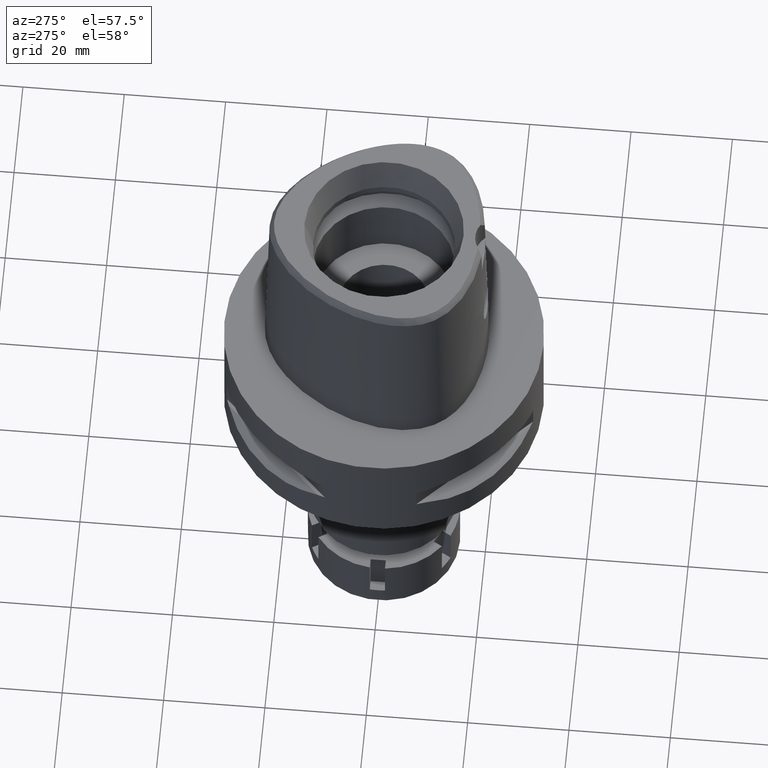
[diagram: clean part render]
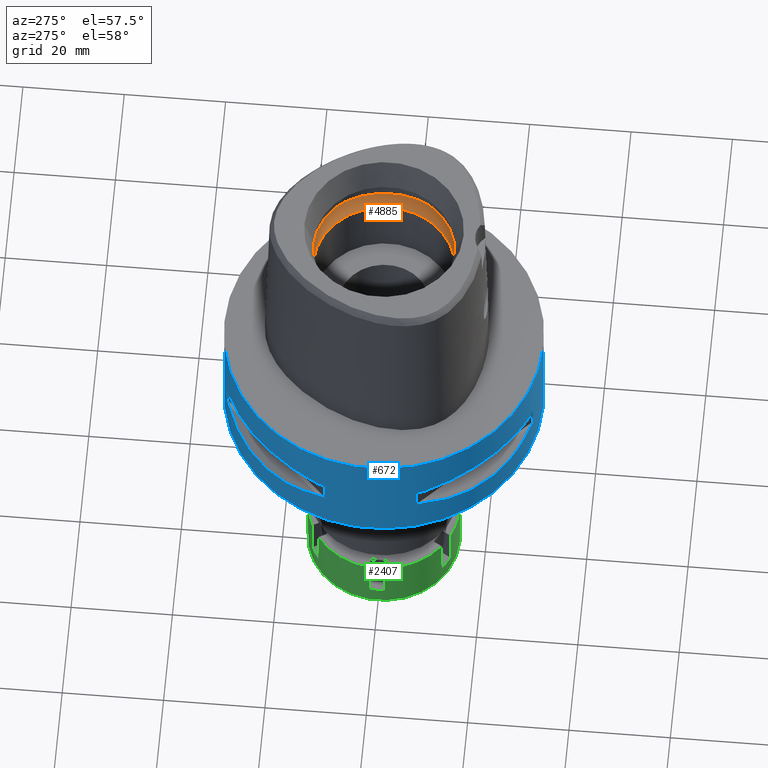
[diagram: same view with three faces highlighted in distinct colors, each labeled with its STEP entity id]
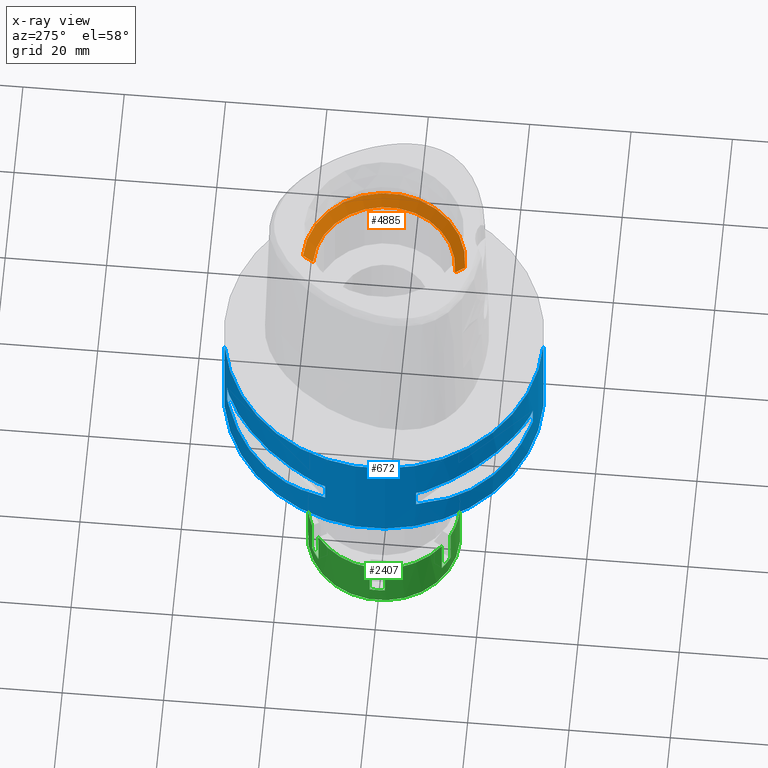
[diagram: x-ray of the same camera — body ghosted, the three highlighted faces saturated]
A machine part, auxiliary view with three faces highlighted in distinct colors.
The next image is the same camera in x-ray (body ghosted, the three faces saturated) — at least one of them is partly hidden behind the body in this view.
Their STEP definitions:

[orange] entity #4885 — the highlighted conical surface has half-angle 45 deg.
#178 = EDGE_CURVE ( 'NONE', #5283, #1305, #4591, .T. ) ;
#352 = CARTESIAN_POINT ( 'NONE',  ( 0.0000000000000000000, 16.00000000000000000, 26.20000000000000284 ) ) ;
#416 = ORIENTED_EDGE ( 'NONE', *, *, #178, .T. ) ;
#537 = ORIENTED_EDGE ( 'NONE', *, *, #3605, .F. ) ;
#600 = LINE ( 'NONE', #3558, #2010 ) ;
#818 = CARTESIAN_POINT ( 'NONE',  ( 0.0000000000000000000, 14.00000000000000000, 24.19999999999999929 ) ) ;
#908 = EDGE_CURVE ( 'NONE', #4446, #1081, #600, .T. ) ;
#1041 = DIRECTION ( 'NONE',  ( 0.0000000000000000000, 0.0000000000000000000, -1.000000000000000000 ) ) ;
#1081 = VERTEX_POINT ( 'NONE', #352 ) ;
#1305 = VERTEX_POINT ( 'NONE', #3612 ) ;
#1372 = CARTESIAN_POINT ( 'NONE',  ( 0.0000000000000000000, 0.0000000000000000000, 24.19999999999999929 ) ) ;
#1399 = EDGE_LOOP ( 'NONE', ( #537, #3293, #2853, #416 ) ) ;
#1430 = DIRECTION ( 'NONE',  ( 0.0000000000000000000, -1.000000000000000000, 0.0000000000000000000 ) ) ;
#1528 = DIRECTION ( 'NONE',  ( 0.0000000000000000000, 1.000000000000000000, 0.0000000000000000000 ) ) ;
#1856 = CARTESIAN_POINT ( 'NONE',  ( 0.0000000000000000000, 0.0000000000000000000, 26.20000000000000284 ) ) ;
#1988 = CIRCLE ( 'NONE', #3396, 16.00000000000000000 ) ;
#2010 = VECTOR ( 'NONE', #4064, 1000.000000000000114 ) ;
#2117 = DIRECTION ( 'NONE',  ( 0.0000000000000000000, 1.000000000000000000, 0.0000000000000000000 ) ) ;
#2241 = CARTESIAN_POINT ( 'NONE',  ( 0.0000000000000000000, -14.00000000000000000, 24.19999999999999929 ) ) ;
#2284 = DIRECTION ( 'NONE',  ( 0.0000000000000000000, 0.0000000000000000000, 1.000000000000000000 ) ) ;
#2460 = DIRECTION ( 'NONE',  ( 0.0000000000000000000, -0.7071067811865474617, 0.7071067811865474617 ) ) ;
#2853 = ORIENTED_EDGE ( 'NONE', *, *, #3994, .F. ) ;
#2929 = CARTESIAN_POINT ( 'NONE',  ( 0.0000000000000000000, -14.00000000000000000, 24.19999999999999929 ) ) ;
#3293 = ORIENTED_EDGE ( 'NONE', *, *, #908, .F. ) ;
#3367 = CARTESIAN_POINT ( 'NONE',  ( 0.0000000000000000000, 0.0000000000000000000, 25.19999999999999929 ) ) ;
#3396 = AXIS2_PLACEMENT_3D ( 'NONE', #1856, #1041, #1528 ) ;
#3558 = CARTESIAN_POINT ( 'NONE',  ( 0.0000000000000000000, 14.00000000000000000, 24.19999999999999929 ) ) ;
#3576 = CONICAL_SURFACE ( 'NONE', #3833, 15.00000000000000000, 0.7853981633972997312 ) ;
#3605 = EDGE_CURVE ( 'NONE', #1081, #1305, #1988, .T. ) ;
#3612 = CARTESIAN_POINT ( 'NONE',  ( 0.0000000000000000000, -16.00000000000000000, 26.20000000000000284 ) ) ;
#3833 = AXIS2_PLACEMENT_3D ( 'NONE', #3367, #4717, #2117 ) ;
#3858 = VECTOR ( 'NONE', #2460, 1000.000000000000114 ) ;
#3890 = FACE_OUTER_BOUND ( 'NONE', #1399, .T. ) ;
#3994 = EDGE_CURVE ( 'NONE', #5283, #4446, #5068, .T. ) ;
#4064 = DIRECTION ( 'NONE',  ( 0.0000000000000000000, 0.7071067811865474617, 0.7071067811865474617 ) ) ;
#4446 = VERTEX_POINT ( 'NONE', #818 ) ;
#4591 = LINE ( 'NONE', #2929, #3858 ) ;
#4636 = AXIS2_PLACEMENT_3D ( 'NONE', #1372, #2284, #1430 ) ;
#4717 = DIRECTION ( 'NONE',  ( 0.0000000000000000000, 0.0000000000000000000, 1.000000000000000000 ) ) ;
#4885 = ADVANCED_FACE ( 'NONE', ( #3890 ), #3576, .F. ) ;
#5068 = CIRCLE ( 'NONE', #4636, 14.00000000000000000 ) ;
#5283 = VERTEX_POINT ( 'NONE', #2241 ) ;

[blue] entity #672 — the highlighted cylindrical surface (partial cylindrical patch) has radius 31.5 mm, axis along (0, 0, -1).
#6 = EDGE_CURVE ( 'NONE', #2631, #3248, #2086, .T. ) ;
#79 = VERTEX_POINT ( 'NONE', #202 ) ;
#90 = FACE_OUTER_BOUND ( 'NONE', #1688, .T. ) ;
#133 = CARTESIAN_POINT ( 'NONE',  ( -10.44775724750000023, -29.71690375017999841, -9.949999999998999201 ) ) ;
#164 = CIRCLE ( 'NONE', #2453, 31.50000000000000711 ) ;
#180 = DIRECTION ( 'NONE',  ( 0.0000000000000000000, 0.0000000000000000000, 1.000000000000000000 ) ) ;
#187 = VERTEX_POINT ( 'NONE', #4613 ) ;
#192 = CARTESIAN_POINT ( 'NONE',  ( -26.42800887047508240, 17.14106442934706820, -15.43984550238465836 ) ) ;
#202 = CARTESIAN_POINT ( 'NONE',  ( -8.981198972019999616, -30.19251670572000279, -14.05000000000000071 ) ) ;
#261 = DIRECTION ( 'NONE',  ( -0.9433937698468619626, -0.3316748332540863653, 0.0000000000000000000 ) ) ;
#272 = DIRECTION ( 'NONE',  ( 0.0000000000000000000, 0.0000000000000000000, -1.000000000000000000 ) ) ;
#287 = VERTEX_POINT ( 'NONE', #2019 ) ;
#304 = CARTESIAN_POINT ( 'NONE',  ( -14.89252659053665440, -27.86285265927818600, -15.10765629750852135 ) ) ;
#329 = CARTESIAN_POINT ( 'NONE',  ( -23.90617837150508507, -20.64154884324739214, -8.160627831297871282 ) ) ;
#348 = CARTESIAN_POINT ( 'NONE',  ( 0.0000000000000000000, 1.266284790317999913E-14, -14.05000000000000071 ) ) ;
#356 = CARTESIAN_POINT ( 'NONE',  ( -29.31542262584746794, -11.58970337494326941, -14.35229357166913999 ) ) ;
#367 = ORIENTED_EDGE ( 'NONE', *, *, #3380, .F. ) ;
#536 = CARTESIAN_POINT ( 'NONE',  ( -29.71690375017999841, -10.44775724750000023, -9.949999999998999201 ) ) ;
#544 = CARTESIAN_POINT ( 'NONE',  ( -26.01217882834653139, 17.76952662671834915, -15.52665221626015501 ) ) ;
#559 = CARTESIAN_POINT ( 'NONE',  ( 0.0000000000000000000, 31.50000000000000000, -22.00000000000000000 ) ) ;
#573 = CARTESIAN_POINT ( 'NONE',  ( -29.71690375017999841, 10.44775724750000023, -14.05000000000000071 ) ) ;
#636 = LINE ( 'NONE', #2704, #2342 ) ;
#646 = CARTESIAN_POINT ( 'NONE',  ( -8.981198972017999438, 30.19251670572000279, -14.05000000000000071 ) ) ;
#672 = ADVANCED_FACE ( 'NONE', ( #90, #2626, #3894 ), #3512, .T. ) ;
#676 = DIRECTION ( 'NONE',  ( -0.2851174276831918153, 0.9584925938322735872, 0.0000000000000000000 ) ) ;
#726 = CARTESIAN_POINT ( 'NONE',  ( -23.89673728055121416, -20.65093790435243193, -15.83935804901394739 ) ) ;
#739 = B_SPLINE_CURVE_WITH_KNOTS ( 'NONE', 3,
 ( #4918, #356, #2903, #1148, #5322, #3648, #748, #1964, #1168, #3679, #3311, #726, #5354, #2405, #2456, #4091, #1555, #2801, #1608, #3238, #4588, #304, #3707, #2875 ),
 .UNSPECIFIED., .F., .F.,
 ( 4, 1, 1, 1, 1, 1, 2, 2, 2, 1, 1, 1, 1, 1, 2, 2, 4 ),
 ( 0.0000000000000000000, 0.1250000000000055511, 0.1875000000000083267, 0.2187500000000097977, 0.2343750000000106304, 0.2421875000000108247, 0.2460937500000108524, 0.2500000000000108802, 0.5000000000000087708, 0.6250000000000075495, 0.6875000000000071054, 0.7187500000000067724, 0.7343750000000066613, 0.7421875000000065503, 0.7460937500000062172, 0.7500000000000059952, 1.000000000000000000 ),
 .UNSPECIFIED. ) ;
#748 = CARTESIAN_POINT ( 'NONE',  ( -26.70521063584532229, -16.70616724745790549, -15.37546661817682292 ) ) ;
#771 = CARTESIAN_POINT ( 'NONE',  ( -10.44775724750000023, -29.71690375017999841, -9.949999999998999201 ) ) ;
#815 = ORIENTED_EDGE ( 'NONE', *, *, #4272, .T. ) ;
#838 = VERTEX_POINT ( 'NONE', #133 ) ;
#859 = CARTESIAN_POINT ( 'NONE',  ( -16.03138450077636534, 27.11872488589498786, -15.26880420107476333 ) ) ;
#903 = ORIENTED_EDGE ( 'NONE', *, *, #4699, .T. ) ;
#957 = VERTEX_POINT ( 'NONE', #5235 ) ;
#994 = DIRECTION ( 'NONE',  ( -0.9584925938322735872, 0.2851174276831918153, 0.0000000000000000000 ) ) ;
#1021 = CARTESIAN_POINT ( 'NONE',  ( 0.0000000000000000000, 1.266284790317999913E-14, 0.0000000000000000000 ) ) ;
#1031 = AXIS2_PLACEMENT_3D ( 'NONE', #1424, #180, #3462 ) ;
#1058 = CARTESIAN_POINT ( 'NONE',  ( -8.981198972017999438, 30.19251670572000279, -9.950000000000001066 ) ) ;
#1065 = CARTESIAN_POINT ( 'NONE',  ( -26.29071741523646111, 17.35163608579689409, -15.46976201925398087 ) ) ;
#1086 = CARTESIAN_POINT ( 'NONE',  ( 0.0000000000000000000, -31.50000000000000000, 0.0000000000000000000 ) ) ;
#1111 = LINE ( 'NONE', #5342, #1116 ) ;
#1116 = VECTOR ( 'NONE', #272, 1000.000000000000000 ) ;
#1117 = CARTESIAN_POINT ( 'NONE',  ( -28.91382665368626093, 12.73197616788979047, -14.65467361754097197 ) ) ;
#1148 = CARTESIAN_POINT ( 'NONE',  ( -27.64634172018421410, -15.11986997309601577, -15.11207862403482238 ) ) ;
#1164 = EDGE_CURVE ( 'NONE', #2887, #3627, #2540, .T. ) ;
#1168 = CARTESIAN_POINT ( 'NONE',  ( -26.60451452154760332, -16.86571563436626064, -15.39949295786003347 ) ) ;
#1172 = ORIENTED_EDGE ( 'NONE', *, *, #4915, .F. ) ;
#1181 = CARTESIAN_POINT ( 'NONE',  ( 0.0000000000000000000, 1.266284790317999913E-14, -9.950000000000001066 ) ) ;
#1182 = EDGE_CURVE ( 'NONE', #4047, #838, #2755, .T. ) ;
#1187 = CARTESIAN_POINT ( 'NONE',  ( -12.70097436179016981, -28.92472615206970588, -9.353533115217881999 ) ) ;
#1216 = CARTESIAN_POINT ( 'NONE',  ( -29.71690375017999841, -10.44775724750000023, -9.949999999998999201 ) ) ;
#1239 = EDGE_CURVE ( 'NONE', #2716, #3503, #2011, .T. ) ;
#1284 = ORIENTED_EDGE ( 'NONE', *, *, #3519, .T. ) ;
#1292 = ORIENTED_EDGE ( 'NONE', *, *, #1164, .T. ) ;
#1301 = CARTESIAN_POINT ( 'NONE',  ( -29.71690375017999841, 10.44775724750000023, -14.05000000000000071 ) ) ;
#1333 = CARTESIAN_POINT ( 'NONE',  ( 0.0000000000000000000, 1.266284790317999913E-14, -9.950000000000001066 ) ) ;
#1336 = EDGE_LOOP ( 'NONE', ( #4330, #1376, #2963, #1172, #815, #367, #3403, #3599 ) ) ;
#1340 = EDGE_CURVE ( 'NONE', #2888, #3903, #164, .T. ) ;
#1371 = CARTESIAN_POINT ( 'NONE',  ( 0.0000000000000000000, 1.266284790317999913E-14, -14.05000000000000071 ) ) ;
#1376 = ORIENTED_EDGE ( 'NONE', *, *, #3298, .F. ) ;
#1383 = CARTESIAN_POINT ( 'NONE',  ( -13.25636937902232404, 28.62019653469382163, -14.74888225540932751 ) ) ;
#1401 = DIRECTION ( 'NONE',  ( 0.0000000000000000000, 0.0000000000000000000, -1.000000000000000000 ) ) ;
#1403 = CIRCLE ( 'NONE', #2188, 31.50000000000001776 ) ;
#1411 = CARTESIAN_POINT ( 'NONE',  ( -27.86285265926284893, 14.89252659058025685, -15.10765629752004813 ) ) ;
#1424 = CARTESIAN_POINT ( 'NONE',  ( 0.0000000000000000000, 1.266284790317999913E-14, -9.950000000000001066 ) ) ;
#1438 = CARTESIAN_POINT ( 'NONE',  ( -16.86571563436579169, 26.60451452154777030, -15.39949295785988426 ) ) ;
#1461 = LINE ( 'NONE', #1058, #1553 ) ;
#1543 = CARTESIAN_POINT ( 'NONE',  ( -27.88210502980663819, 14.84430321584963330, -8.906184731949368327 ) ) ;
#1550 = EDGE_CURVE ( 'NONE', #3395, #3627, #4731, .T. ) ;
#1553 = VECTOR ( 'NONE', #3908, 1000.000000000000000 ) ;
#1555 = CARTESIAN_POINT ( 'NONE',  ( -17.35163608579889072, -26.29071741523761929, -15.46976201925527761 ) ) ;
#1572 = CARTESIAN_POINT ( 'NONE',  ( -12.70092055726457225, 28.92474506846247451, -9.353547358238497367 ) ) ;
#1602 = CARTESIAN_POINT ( 'NONE',  ( -20.64154884324739214, -23.90617837150508507, -8.160613588476767433 ) ) ;
#1608 = CARTESIAN_POINT ( 'NONE',  ( -17.05047092244293694, -26.48642424310493837, -15.42670883407686588 ) ) ;
#1686 = DIRECTION ( 'NONE',  ( 0.0000000000000000000, 0.0000000000000000000, -1.000000000000000000 ) ) ;
#1688 = EDGE_LOOP ( 'NONE', ( #1292, #4597, #3442, #1284 ) ) ;
#1730 = ORIENTED_EDGE ( 'NONE', *, *, #1182, .T. ) ;
#1748 = DIRECTION ( 'NONE',  ( 0.0000000000000000000, 0.0000000000000000000, -1.000000000000000000 ) ) ;
#1762 = CARTESIAN_POINT ( 'NONE',  ( -10.44775724750000023, 29.71690375017999841, -14.05000000000000071 ) ) ;
#1890 = VERTEX_POINT ( 'NONE', #3654 ) ;
#1892 = CARTESIAN_POINT ( 'NONE',  ( 0.0000000000000000000, 31.50000000000000000, 0.0000000000000000000 ) ) ;
#1916 = VERTEX_POINT ( 'NONE', #646 ) ;
#1920 = EDGE_CURVE ( 'NONE', #187, #4519, #1403, .T. ) ;
#1964 = CARTESIAN_POINT ( 'NONE',  ( -26.64486562695783789, -16.80193241490531975, -15.38992683735687272 ) ) ;
#1983 = AXIS2_PLACEMENT_3D ( 'NONE', #2431, #4124, #3806 ) ;
#1990 = CARTESIAN_POINT ( 'NONE',  ( -10.44775724750000023, 29.71690375017999841, -14.05000000000000071 ) ) ;
#2004 = CARTESIAN_POINT ( 'NONE',  ( -18.81455742157509903, 25.37277178172508840, -8.309746333145048069 ) ) ;
#2011 = CIRCLE ( 'NONE', #3608, 31.50000000000001776 ) ;
#2019 = CARTESIAN_POINT ( 'NONE',  ( -10.44775724750000023, -29.71690375017999841, -14.05000000000000071 ) ) ;
#2035 = CARTESIAN_POINT ( 'NONE',  ( -30.19251670572000279, 8.981198972017999438, -9.950000000000001066 ) ) ;
#2065 = VECTOR ( 'NONE', #3119, 1000.000000000000000 ) ;
#2086 = CIRCLE ( 'NONE', #4214, 31.50000000000000711 ) ;
#2139 = ORIENTED_EDGE ( 'NONE', *, *, #6, .T. ) ;
#2153 = AXIS2_PLACEMENT_3D ( 'NONE', #1021, #5289, #3088 ) ;
#2188 = AXIS2_PLACEMENT_3D ( 'NONE', #2331, #4871, #676 ) ;
#2243 = CIRCLE ( 'NONE', #1031, 31.50000000000000711 ) ;
#2265 = CARTESIAN_POINT ( 'NONE',  ( 0.0000000000000000000, 1.266284790317999913E-14, 3.399999999999999911 ) ) ;
#2281 = ORIENTED_EDGE ( 'NONE', *, *, #3887, .F. ) ;
#2293 = CARTESIAN_POINT ( 'NONE',  ( -18.86897208073744991, 25.32725744467937545, -15.69588095933747240 ) ) ;
#2331 = CARTESIAN_POINT ( 'NONE',  ( 0.0000000000000000000, 1.266284790317999913E-14, -9.950000000000001066 ) ) ;
#2340 = DIRECTION ( 'NONE',  ( 0.0000000000000000000, 0.0000000000000000000, 1.000000000000000000 ) ) ;
#2342 = VECTOR ( 'NONE', #3619, 1000.000000000000000 ) ;
#2366 = ORIENTED_EDGE ( 'NONE', *, *, #4247, .T. ) ;
#2405 = CARTESIAN_POINT ( 'NONE',  ( -20.18579225686653444, -24.23018836745773541, -15.78559396979401974 ) ) ;
#2422 = CARTESIAN_POINT ( 'NONE',  ( -27.88214534467230976, -14.84422749205291581, -8.906206096480271839 ) ) ;
#2424 = AXIS2_PLACEMENT_3D ( 'NONE', #1181, #2340, #2762 ) ;
#2431 = CARTESIAN_POINT ( 'NONE',  ( 0.0000000000000000000, 1.266284790317999913E-14, -14.05000000000000071 ) ) ;
#2453 = AXIS2_PLACEMENT_3D ( 'NONE', #1333, #2634, #5172 ) ;
#2456 = CARTESIAN_POINT ( 'NONE',  ( -18.59229662065495958, -25.43927894891979946, -15.62866126334684580 ) ) ;
#2472 = CARTESIAN_POINT ( 'NONE',  ( -29.71690375017999841, -10.44775724750000023, -14.05000000000000071 ) ) ;
#2530 = CARTESIAN_POINT ( 'NONE',  ( 0.0000000000000000000, 1.266284790317999913E-14, -22.00000000000000000 ) ) ;
#2539 = CARTESIAN_POINT ( 'NONE',  ( -16.48208282228564769, 26.84474411198887012, -15.34094883777873619 ) ) ;
#2540 = CIRCLE ( 'NONE', #4223, 31.50000000000000000 ) ;
#2626 = FACE_BOUND ( 'NONE', #1336, .T. ) ;
#2631 = VERTEX_POINT ( 'NONE', #2472 ) ;
#2634 = DIRECTION ( 'NONE',  ( 0.0000000000000000000, 0.0000000000000000000, 1.000000000000000000 ) ) ;
#2667 = CARTESIAN_POINT ( 'NONE',  ( -30.19251670572000279, 8.981198972017999438, -14.05000000000000071 ) ) ;
#2704 = CARTESIAN_POINT ( 'NONE',  ( -8.981198972017999438, -30.19251670572000279, -14.05000000000000071 ) ) ;
#2716 = VERTEX_POINT ( 'NONE', #3669 ) ;
#2734 = LINE ( 'NONE', #2667, #2065 ) ;
#2745 = CARTESIAN_POINT ( 'NONE',  ( 0.0000000000000000000, -31.50000000000000000, -22.00000000000000000 ) ) ;
#2755 = B_SPLINE_CURVE_WITH_KNOTS ( 'NONE', 3,
 ( #1216, #4959, #2422, #4113, #329, #1602, #5451, #3335, #1187, #771 ),
 .UNSPECIFIED., .F., .F.,
 ( 4, 2, 2, 2, 4 ),
 ( 0.0000000000000000000, 0.2499999999999999445, 0.4999999999999998890, 0.7499999999999997780, 1.000000000000000000 ),
 .UNSPECIFIED. ) ;
#2762 = DIRECTION ( 'NONE',  ( -0.9584925938322735872, -0.2851174276831918153, 0.0000000000000000000 ) ) ;
#2787 = CARTESIAN_POINT ( 'NONE',  ( -14.84422749192772883, 27.88214534473898354, -8.906206096515608905 ) ) ;
#2801 = CARTESIAN_POINT ( 'NONE',  ( -17.14106442934810204, -26.42800887047570058, -15.43984550238532982 ) ) ;
#2840 = CARTESIAN_POINT ( 'NONE',  ( -10.44775724750000023, 29.71690375017999841, -9.949999999998999201 ) ) ;
#2843 = DIRECTION ( 'NONE',  ( 0.0000000000000000000, 0.0000000000000000000, 1.000000000000000000 ) ) ;
#2875 = CARTESIAN_POINT ( 'NONE',  ( -10.44775724750000023, -29.71690375017999841, -14.05000000000000071 ) ) ;
#2887 = VERTEX_POINT ( 'NONE', #559 ) ;
#2888 = VERTEX_POINT ( 'NONE', #3998 ) ;
#2903 = CARTESIAN_POINT ( 'NONE',  ( -28.62019653468943048, -13.25636937903484203, -14.74888225541266884 ) ) ;
#2913 = EDGE_CURVE ( 'NONE', #3395, #2991, #2949, .T. ) ;
#2937 = CARTESIAN_POINT ( 'NONE',  ( -10.44775724750000023, 29.71690375017999841, -9.949999999998999201 ) ) ;
#2949 = CIRCLE ( 'NONE', #2153, 31.50000000000000000 ) ;
#2963 = ORIENTED_EDGE ( 'NONE', *, *, #1239, .T. ) ;
#2991 = VERTEX_POINT ( 'NONE', #1892 ) ;
#3067 = CARTESIAN_POINT ( 'NONE',  ( -15.11986997308662595, 27.64634172018752523, -15.11207862403231239 ) ) ;
#3088 = DIRECTION ( 'NONE',  ( 0.0000000000000000000, -1.000000000000000000, 0.0000000000000000000 ) ) ;
#3098 = CARTESIAN_POINT ( 'NONE',  ( -20.65093790435807364, 23.89673728056094859, -15.83935804902020550 ) ) ;
#3119 = DIRECTION ( 'NONE',  ( 0.0000000000000000000, 0.0000000000000000000, 1.000000000000000000 ) ) ;
#3126 = CARTESIAN_POINT ( 'NONE',  ( -16.89910283486545950, 26.58330558444438907, -15.40446471307224030 ) ) ;
#3158 = CARTESIAN_POINT ( 'NONE',  ( -26.54368690921649687, 16.96123479564916892, -15.41365572341313239 ) ) ;
#3238 = CARTESIAN_POINT ( 'NONE',  ( -16.98999780422095540, -26.52527364208602734, -15.41788098766330783 ) ) ;
#3248 = VERTEX_POINT ( 'NONE', #3742 ) ;
#3252 = CARTESIAN_POINT ( 'NONE',  ( -29.71690375017999841, 10.44775724750000023, -9.949999999998999201 ) ) ;
#3298 = EDGE_CURVE ( 'NONE', #2716, #3903, #2734, .T. ) ;
#3311 = CARTESIAN_POINT ( 'NONE',  ( -25.32725744469575702, -18.86897208070564247, -15.69588095933118943 ) ) ;
#3335 = CARTESIAN_POINT ( 'NONE',  ( -14.84430321572443034, -27.88210502987327288, -8.906184731984685854 ) ) ;
#3380 = EDGE_CURVE ( 'NONE', #187, #1916, #1461, .T. ) ;
#3389 = CIRCLE ( 'NONE', #2424, 31.50000000000001776 ) ;
#3395 = VERTEX_POINT ( 'NONE', #1086 ) ;
#3403 = ORIENTED_EDGE ( 'NONE', *, *, #1920, .T. ) ;
#3442 = ORIENTED_EDGE ( 'NONE', *, *, #2913, .T. ) ;
#3462 = DIRECTION ( 'NONE',  ( -0.3316748332540863653, -0.9433937698468619626, 0.0000000000000000000 ) ) ;
#3503 = VERTEX_POINT ( 'NONE', #1301 ) ;
#3512 = CYLINDRICAL_SURFACE ( 'NONE', #4045, 31.50000000000000000 ) ;
#3519 = EDGE_CURVE ( 'NONE', #2991, #2887, #3839, .T. ) ;
#3542 = CARTESIAN_POINT ( 'NONE',  ( 0.0000000000000000000, 1.266284790317999913E-14, -14.05000000000000071 ) ) ;
#3567 = CIRCLE ( 'NONE', #1983, 31.50000000000001776 ) ;
#3599 = ORIENTED_EDGE ( 'NONE', *, *, #4344, .T. ) ;
#3608 = AXIS2_PLACEMENT_3D ( 'NONE', #1371, #1401, #994 ) ;
#3619 = DIRECTION ( 'NONE',  ( 0.0000000000000000000, 0.0000000000000000000, 1.000000000000000000 ) ) ;
#3623 = B_SPLINE_CURVE_WITH_KNOTS ( 'NONE', 3,
 ( #1762, #4639, #1383, #3067, #859, #2539, #4229, #5213, #1438, #3126, #2293, #3098, #3950, #4395, #4336, #544, #1065, #192, #4774, #4006, #3158, #1411, #1117, #573 ),
 .UNSPECIFIED., .F., .F.,
 ( 4, 1, 1, 1, 1, 1, 2, 2, 2, 1, 1, 1, 1, 1, 2, 2, 4 ),
 ( 0.0000000000000000000, 0.1249999999999950040, 0.1874999999999924505, 0.2187499999999911737, 0.2343749999999902855, 0.2421874999999899802, 0.2460937499999900080, 0.2499999999999900080, 0.4999999999999917843, 0.6249999999999925615, 0.6874999999999925615, 0.7187499999999924505, 0.7343749999999926725, 0.7421874999999927836, 0.7460937499999928946, 0.7499999999999931166, 1.000000000000000000 ),
 .UNSPECIFIED. ) ;
#3627 = VERTEX_POINT ( 'NONE', #2745 ) ;
#3648 = CARTESIAN_POINT ( 'NONE',  ( -26.84474411198783628, -16.48208282228858224, -15.34094883777952667 ) ) ;
#3654 = CARTESIAN_POINT ( 'NONE',  ( -30.19251670572000279, -8.981198972019999616, -9.950000000000001066 ) ) ;
#3669 = CARTESIAN_POINT ( 'NONE',  ( -30.19251670572000279, 8.981198972019999616, -14.05000000000000071 ) ) ;
#3679 = CARTESIAN_POINT ( 'NONE',  ( -26.58330558444411906, -16.89910283486596754, -15.40446471307235754 ) ) ;
#3700 = DIRECTION ( 'NONE',  ( 0.0000000000000000000, 1.000000000000000000, 0.0000000000000000000 ) ) ;
#3707 = CARTESIAN_POINT ( 'NONE',  ( -12.73197616784617381, -28.91382665370159799, -14.65467361752943809 ) ) ;
#3722 = CARTESIAN_POINT ( 'NONE',  ( -20.64154884331406237, 23.90617837143844682, -8.160627831321418668 ) ) ;
#3742 = CARTESIAN_POINT ( 'NONE',  ( -30.19251670572000279, -8.981198972017999438, -14.05000000000000071 ) ) ;
#3806 = DIRECTION ( 'NONE',  ( -0.2851174276831918153, -0.9584925938322735872, 0.0000000000000000000 ) ) ;
#3814 = ORIENTED_EDGE ( 'NONE', *, *, #4989, .F. ) ;
#3839 = LINE ( 'NONE', #4723, #4373 ) ;
#3847 = CARTESIAN_POINT ( 'NONE',  ( 0.0000000000000000000, -31.50000000000000000, 0.0000000000000000000 ) ) ;
#3855 = VERTEX_POINT ( 'NONE', #1990 ) ;
#3864 = VECTOR ( 'NONE', #1748, 1000.000000000000000 ) ;
#3887 = EDGE_CURVE ( 'NONE', #2631, #287, #739, .T. ) ;
#3894 = FACE_BOUND ( 'NONE', #5169, .T. ) ;
#3903 = VERTEX_POINT ( 'NONE', #2035 ) ;
#3908 = DIRECTION ( 'NONE',  ( 0.0000000000000000000, 0.0000000000000000000, -1.000000000000000000 ) ) ;
#3950 = CARTESIAN_POINT ( 'NONE',  ( -23.08532645888017854, 21.46242677077873751, -15.83938991065184076 ) ) ;
#3954 = DIRECTION ( 'NONE',  ( 0.0000000000000000000, -1.000000000000000000, 0.0000000000000000000 ) ) ;
#3989 = ORIENTED_EDGE ( 'NONE', *, *, #4316, .F. ) ;
#3998 = CARTESIAN_POINT ( 'NONE',  ( -29.71690375017999841, 10.44775724750000023, -9.949999999998999201 ) ) ;
#4006 = CARTESIAN_POINT ( 'NONE',  ( -26.52527364208584615, 16.98999780422065342, -15.41788098766309467 ) ) ;
#4045 = AXIS2_PLACEMENT_3D ( 'NONE', #2265, #4314, #3954 ) ;
#4047 = VERTEX_POINT ( 'NONE', #536 ) ;
#4060 = CARTESIAN_POINT ( 'NONE',  ( -25.37272068394556257, 18.81462633037747167, -8.309724968578809268 ) ) ;
#4091 = CARTESIAN_POINT ( 'NONE',  ( -17.76952662672209371, -26.01217882834868433, -15.52665221626257264 ) ) ;
#4113 = CARTESIAN_POINT ( 'NONE',  ( -25.37277178164059777, -18.81455742168903456, -8.309746333109711003 ) ) ;
#4124 = DIRECTION ( 'NONE',  ( 0.0000000000000000000, 0.0000000000000000000, -1.000000000000000000 ) ) ;
#4214 = AXIS2_PLACEMENT_3D ( 'NONE', #3542, #4433, #261 ) ;
#4223 = AXIS2_PLACEMENT_3D ( 'NONE', #2530, #2843, #3700 ) ;
#4229 = CARTESIAN_POINT ( 'NONE',  ( -16.70616724745637072, 26.70521063584585164, -15.37546661817639126 ) ) ;
#4230 = B_SPLINE_CURVE_WITH_KNOTS ( 'NONE', 3,
 ( #2840, #1572, #2787, #2004, #3722, #5310, #4060, #1543, #4907, #3252 ),
 .UNSPECIFIED., .F., .F.,
 ( 4, 2, 2, 2, 4 ),
 ( 0.0000000000000000000, 0.2500000000000000000, 0.5000000000000000000, 0.7500000000000000000, 1.000000000000000000 ),
 .UNSPECIFIED. ) ;
#4247 = EDGE_CURVE ( 'NONE', #1890, #4047, #3389, .T. ) ;
#4272 = EDGE_CURVE ( 'NONE', #3855, #1916, #5408, .T. ) ;
#4314 = DIRECTION ( 'NONE',  ( 0.0000000000000000000, 0.0000000000000000000, -1.000000000000000000 ) ) ;
#4316 = EDGE_CURVE ( 'NONE', #1890, #3248, #1111, .T. ) ;
#4330 = ORIENTED_EDGE ( 'NONE', *, *, #1340, .T. ) ;
#4336 = CARTESIAN_POINT ( 'NONE',  ( -25.43927894891607622, 18.59229662064853983, -15.62866126334269623 ) ) ;
#4344 = EDGE_CURVE ( 'NONE', #4519, #2888, #4230, .T. ) ;
#4373 = VECTOR ( 'NONE', #1686, 1000.000000000000000 ) ;
#4395 = CARTESIAN_POINT ( 'NONE',  ( -24.23018836745279714, 20.18579225685798306, -15.78559396978850415 ) ) ;
#4433 = DIRECTION ( 'NONE',  ( 0.0000000000000000000, 0.0000000000000000000, -1.000000000000000000 ) ) ;
#4444 = DIRECTION ( 'NONE',  ( 0.0000000000000000000, 0.0000000000000000000, -1.000000000000000000 ) ) ;
#4475 = AXIS2_PLACEMENT_3D ( 'NONE', #348, #4444, #4955 ) ;
#4491 = ORIENTED_EDGE ( 'NONE', *, *, #5114, .T. ) ;
#4519 = VERTEX_POINT ( 'NONE', #2937 ) ;
#4588 = CARTESIAN_POINT ( 'NONE',  ( -16.96123479564984748, -26.54368690921626950, -15.41365572341332424 ) ) ;
#4597 = ORIENTED_EDGE ( 'NONE', *, *, #1550, .F. ) ;
#4613 = CARTESIAN_POINT ( 'NONE',  ( -8.981198972019999616, 30.19251670572000279, -9.950000000000001066 ) ) ;
#4639 = CARTESIAN_POINT ( 'NONE',  ( -11.58970337493613378, 29.31542262584994418, -14.35229357166721265 ) ) ;
#4699 = EDGE_CURVE ( 'NONE', #79, #287, #3567, .T. ) ;
#4723 = CARTESIAN_POINT ( 'NONE',  ( 0.0000000000000000000, 31.50000000000000000, 0.0000000000000000000 ) ) ;
#4731 = LINE ( 'NONE', #3847, #3864 ) ;
#4774 = CARTESIAN_POINT ( 'NONE',  ( -26.48642424310458665, 17.05047092244234008, -15.42670883407647509 ) ) ;
#4871 = DIRECTION ( 'NONE',  ( 0.0000000000000000000, 0.0000000000000000000, 1.000000000000000000 ) ) ;
#4907 = CARTESIAN_POINT ( 'NONE',  ( -28.92472615203844910, 12.70097436187914575, -9.353533115194341718 ) ) ;
#4915 = EDGE_CURVE ( 'NONE', #3855, #3503, #3623, .T. ) ;
#4918 = CARTESIAN_POINT ( 'NONE',  ( -29.71690375017999841, -10.44775724750000023, -14.05000000000000071 ) ) ;
#4955 = DIRECTION ( 'NONE',  ( -0.3316748332540863653, 0.9433937698468619626, 0.0000000000000000000 ) ) ;
#4959 = CARTESIAN_POINT ( 'NONE',  ( -28.92474506843119286, -12.70092055735351266, -9.353547358214942875 ) ) ;
#4989 = EDGE_CURVE ( 'NONE', #79, #957, #636, .T. ) ;
#5114 = EDGE_CURVE ( 'NONE', #838, #957, #2243, .T. ) ;
#5169 = EDGE_LOOP ( 'NONE', ( #4491, #3814, #903, #2281, #2139, #3989, #2366, #1730 ) ) ;
#5172 = DIRECTION ( 'NONE',  ( -0.9433937698468619626, 0.3316748332540863653, 0.0000000000000000000 ) ) ;
#5213 = CARTESIAN_POINT ( 'NONE',  ( -16.80193241490443157, 26.64486562695815053, -15.38992683735661515 ) ) ;
#5235 = CARTESIAN_POINT ( 'NONE',  ( -8.981198972017999438, -30.19251670572000279, -9.950000000000001066 ) ) ;
#5289 = DIRECTION ( 'NONE',  ( 0.0000000000000000000, 0.0000000000000000000, -1.000000000000000000 ) ) ;
#5310 = CARTESIAN_POINT ( 'NONE',  ( -23.90617837143843971, 20.64154884331406237, -8.160613588453221823 ) ) ;
#5322 = CARTESIAN_POINT ( 'NONE',  ( -27.11872488589304453, -16.03138450078185429, -15.26880420107623237 ) ) ;
#5342 = CARTESIAN_POINT ( 'NONE',  ( -30.19251670572000279, -8.981198972017999438, -9.950000000000001066 ) ) ;
#5354 = CARTESIAN_POINT ( 'NONE',  ( -21.46242677078364025, -23.08532645888299939, -15.83938991065501867 ) ) ;
#5408 = CIRCLE ( 'NONE', #4475, 31.50000000000000711 ) ;
#5451 = CARTESIAN_POINT ( 'NONE',  ( -18.81462633026353970, -25.37272068403001413, -8.309724968614126794 ) ) ;

[green] entity #2407 — the highlighted cylindrical surface (partial cylindrical patch) has radius 15 mm, axis along (0, 0, -1).
#162 = DIRECTION ( 'NONE',  ( 0.0000000000000000000, -1.000000000000000000, 0.0000000000000000000 ) ) ;
#198 = LINE ( 'NONE', #983, #5338 ) ;
#204 = CARTESIAN_POINT ( 'NONE',  ( -14.92481155659999992, 1.500000000000000000, -8.000000000000000000 ) ) ;
#206 = DIRECTION ( 'NONE',  ( 0.0000000000000000000, 0.0000000000000000000, 1.000000000000000000 ) ) ;
#211 = DIRECTION ( 'NONE',  ( 0.0000000000000000000, 0.0000000000000000000, 1.000000000000000000 ) ) ;
#242 = LINE ( 'NONE', #3203, #306 ) ;
#292 = EDGE_LOOP ( 'NONE', ( #499, #4874, #3022, #3004, #3476, #1052, #653, #4849, #1539, #1516, #2521, #3351, #3133, #473, #1778, #1931 ) ) ;
#306 = VECTOR ( 'NONE', #2417, 1000.000000000000000 ) ;
#473 = ORIENTED_EDGE ( 'NONE', *, *, #2206, .T. ) ;
#499 = ORIENTED_EDGE ( 'NONE', *, *, #3753, .F. ) ;
#524 = DIRECTION ( 'NONE',  ( -0.4108911781748131320, 0.9116843969807282289, 0.0000000000000000000 ) ) ;
#539 = CARTESIAN_POINT ( 'NONE',  ( 0.0000000000000000000, 0.0000000000000000000, 0.0000000000000000000 ) ) ;
#549 = CARTESIAN_POINT ( 'NONE',  ( -14.92481155659999992, 1.500000000000000000, 0.0000000000000000000 ) ) ;
#570 = AXIS2_PLACEMENT_3D ( 'NONE', #2627, #2545, #524 ) ;
#589 = EDGE_CURVE ( 'NONE', #4350, #4179, #1743, .T. ) ;
#632 = DIRECTION ( 'NONE',  ( 0.0000000000000000000, 0.0000000000000000000, -1.000000000000000000 ) ) ;
#653 = ORIENTED_EDGE ( 'NONE', *, *, #4269, .F. ) ;
#664 = CIRCLE ( 'NONE', #3139, 15.00000000000000000 ) ;
#737 = CARTESIAN_POINT ( 'NONE',  ( -8.761443883976001601, -12.17526595470999951, 0.0000000000000000000 ) ) ;
#826 = VERTEX_POINT ( 'NONE', #3911 ) ;
#843 = CARTESIAN_POINT ( 'NONE',  ( -6.163367672623000004, -13.67526595470999951, -8.000000000000000000 ) ) ;
#884 = CARTESIAN_POINT ( 'NONE',  ( 0.0000000000000000000, 0.0000000000000000000, 0.0000000000000000000 ) ) ;
#983 = CARTESIAN_POINT ( 'NONE',  ( -6.163367672621999915, 13.67526595470999951, 0.0000000000000000000 ) ) ;
#1052 = ORIENTED_EDGE ( 'NONE', *, *, #2211, .T. ) ;
#1104 = DIRECTION ( 'NONE',  ( -0.4108911781748959546, -0.9116843969806908143, 0.0000000000000000000 ) ) ;
#1160 = CARTESIAN_POINT ( 'NONE',  ( -8.761443883976001601, -12.17526595470999951, 0.0000000000000000000 ) ) ;
#1306 = VERTEX_POINT ( 'NONE', #3552 ) ;
#1442 = DIRECTION ( 'NONE',  ( 0.0000000000000000000, 0.0000000000000000000, -1.000000000000000000 ) ) ;
#1453 = VERTEX_POINT ( 'NONE', #2104 ) ;
#1454 = VERTEX_POINT ( 'NONE', #843 ) ;
#1492 = CARTESIAN_POINT ( 'NONE',  ( -14.92481155659999992, -1.500000000000000000, 0.0000000000000000000 ) ) ;
#1516 = ORIENTED_EDGE ( 'NONE', *, *, #589, .T. ) ;
#1521 = CYLINDRICAL_SURFACE ( 'NONE', #4459, 15.00000000000000000 ) ;
#1539 = ORIENTED_EDGE ( 'NONE', *, *, #4367, .F. ) ;
#1597 = CARTESIAN_POINT ( 'NONE',  ( 0.0000000000000000000, 0.0000000000000000000, -8.000000000000000000 ) ) ;
#1628 = VECTOR ( 'NONE', #632, 1000.000000000000000 ) ;
#1731 = DIRECTION ( 'NONE',  ( -0.9949874371066197432, 0.1000000000000019623, 0.0000000000000000000 ) ) ;
#1735 = DIRECTION ( 'NONE',  ( 0.0000000000000000000, 0.0000000000000000000, -1.000000000000000000 ) ) ;
#1740 = CARTESIAN_POINT ( 'NONE',  ( 0.0000000000000000000, 0.0000000000000000000, 0.0000000000000000000 ) ) ;
#1743 = CIRCLE ( 'NONE', #4921, 15.00000000000000355 ) ;
#1757 = DIRECTION ( 'NONE',  ( 0.0000000000000000000, 0.0000000000000000000, -1.000000000000000000 ) ) ;
#1773 = EDGE_CURVE ( 'NONE', #1454, #4677, #4583, .T. ) ;
#1778 = ORIENTED_EDGE ( 'NONE', *, *, #4296, .F. ) ;
#1788 = CARTESIAN_POINT ( 'NONE',  ( 0.0000000000000000000, 15.00000000000000000, 0.0000000000000000000 ) ) ;
#1867 = LINE ( 'NONE', #4876, #3747 ) ;
#1872 = CARTESIAN_POINT ( 'NONE',  ( -14.92481155659999992, -1.500000000000000000, -8.000000000000000000 ) ) ;
#1914 = VERTEX_POINT ( 'NONE', #204 ) ;
#1917 = CARTESIAN_POINT ( 'NONE',  ( 0.0000000000000000000, 0.0000000000000000000, -8.000000000000000000 ) ) ;
#1931 = ORIENTED_EDGE ( 'NONE', *, *, #3642, .T. ) ;
#2104 = CARTESIAN_POINT ( 'NONE',  ( 0.0000000000000000000, 15.00000000000000000, 0.0000000000000000000 ) ) ;
#2144 = CARTESIAN_POINT ( 'NONE',  ( -8.761443883976001601, 12.17526595470999951, -8.000000000000000000 ) ) ;
#2157 = AXIS2_PLACEMENT_3D ( 'NONE', #4456, #1442, #3130 ) ;
#2206 = EDGE_CURVE ( 'NONE', #3385, #2751, #4747, .T. ) ;
#2211 = EDGE_CURVE ( 'NONE', #826, #1306, #664, .T. ) ;
#2223 = CARTESIAN_POINT ( 'NONE',  ( -6.163367672621999915, 13.67526595470999951, -8.000000000000000000 ) ) ;
#2227 = CARTESIAN_POINT ( 'NONE',  ( 0.0000000000000000000, 15.00000000000000000, -11.59999999999999964 ) ) ;
#2247 = CIRCLE ( 'NONE', #570, 14.99999999999999645 ) ;
#2277 = VERTEX_POINT ( 'NONE', #2223 ) ;
#2306 = CARTESIAN_POINT ( 'NONE',  ( 0.0000000000000000000, 0.0000000000000000000, -11.59999999999999964 ) ) ;
#2395 = DIRECTION ( 'NONE',  ( 0.0000000000000000000, 0.0000000000000000000, 1.000000000000000000 ) ) ;
#2407 = ADVANCED_FACE ( 'NONE', ( #3945 ), #1521, .T. ) ;
#2417 = DIRECTION ( 'NONE',  ( 0.0000000000000000000, 0.0000000000000000000, 1.000000000000000000 ) ) ;
#2503 = VERTEX_POINT ( 'NONE', #1872 ) ;
#2517 = EDGE_CURVE ( 'NONE', #826, #4903, #3122, .T. ) ;
#2521 = ORIENTED_EDGE ( 'NONE', *, *, #2828, .F. ) ;
#2545 = DIRECTION ( 'NONE',  ( 0.0000000000000000000, 0.0000000000000000000, -1.000000000000000000 ) ) ;
#2562 = DIRECTION ( 'NONE',  ( 0.0000000000000000000, 0.0000000000000000000, -1.000000000000000000 ) ) ;
#2627 = CARTESIAN_POINT ( 'NONE',  ( 0.0000000000000000000, 0.0000000000000000000, 0.0000000000000000000 ) ) ;
#2644 = DIRECTION ( 'NONE',  ( 0.0000000000000000000, -1.000000000000000000, 0.0000000000000000000 ) ) ;
#2648 = LINE ( 'NONE', #1788, #5055 ) ;
#2700 = CARTESIAN_POINT ( 'NONE',  ( 0.0000000000000000000, 0.0000000000000000000, 0.0000000000000000000 ) ) ;
#2751 = VERTEX_POINT ( 'NONE', #4528 ) ;
#2815 = CARTESIAN_POINT ( 'NONE',  ( -6.163367672623000004, -13.67526595470999951, -8.000000000000000000 ) ) ;
#2828 = EDGE_CURVE ( 'NONE', #2503, #4179, #1867, .T. ) ;
#2861 = DIRECTION ( 'NONE',  ( 0.0000000000000000000, 0.0000000000000000000, -1.000000000000000000 ) ) ;
#2870 = AXIS2_PLACEMENT_3D ( 'NONE', #2306, #206, #5139 ) ;
#3004 = ORIENTED_EDGE ( 'NONE', *, *, #5259, .T. ) ;
#3022 = ORIENTED_EDGE ( 'NONE', *, *, #4710, .T. ) ;
#3042 = DIRECTION ( 'NONE',  ( -0.5840962589317197917, -0.8116843969807286951, 0.0000000000000000000 ) ) ;
#3052 = VECTOR ( 'NONE', #2395, 1000.000000000000000 ) ;
#3122 = LINE ( 'NONE', #4794, #1628 ) ;
#3130 = DIRECTION ( 'NONE',  ( -0.5840962589317860720, 0.8116843969806811776, 0.0000000000000000000 ) ) ;
#3133 = ORIENTED_EDGE ( 'NONE', *, *, #3715, .F. ) ;
#3139 = AXIS2_PLACEMENT_3D ( 'NONE', #539, #1757, #2644 ) ;
#3203 = CARTESIAN_POINT ( 'NONE',  ( -8.761443883976001601, 12.17526595470999951, -8.000000000000000000 ) ) ;
#3205 = DIRECTION ( 'NONE',  ( 0.0000000000000000000, 0.0000000000000000000, -1.000000000000000000 ) ) ;
#3240 = CARTESIAN_POINT ( 'NONE',  ( -8.761443883976001601, -12.17526595470999951, -8.000000000000000000 ) ) ;
#3351 = ORIENTED_EDGE ( 'NONE', *, *, #4381, .T. ) ;
#3385 = VERTEX_POINT ( 'NONE', #4417 ) ;
#3476 = ORIENTED_EDGE ( 'NONE', *, *, #2517, .F. ) ;
#3552 = CARTESIAN_POINT ( 'NONE',  ( -6.163367672623000004, -13.67526595470999951, 0.0000000000000000000 ) ) ;
#3554 = EDGE_CURVE ( 'NONE', #3943, #1453, #2247, .T. ) ;
#3565 = DIRECTION ( 'NONE',  ( 0.0000000000000000000, 0.0000000000000000000, -1.000000000000000000 ) ) ;
#3642 = EDGE_CURVE ( 'NONE', #4814, #2277, #4550, .T. ) ;
#3715 = EDGE_CURVE ( 'NONE', #3385, #1914, #4400, .T. ) ;
#3745 = AXIS2_PLACEMENT_3D ( 'NONE', #1597, #2861, #4548 ) ;
#3747 = VECTOR ( 'NONE', #211, 1000.000000000000000 ) ;
#3753 = EDGE_CURVE ( 'NONE', #3943, #2277, #198, .T. ) ;
#3762 = CIRCLE ( 'NONE', #3745, 15.00000000000000533 ) ;
#3781 = AXIS2_PLACEMENT_3D ( 'NONE', #1917, #4494, #1104 ) ;
#3911 = CARTESIAN_POINT ( 'NONE',  ( 0.0000000000000000000, -15.00000000000000000, 0.0000000000000000000 ) ) ;
#3926 = CIRCLE ( 'NONE', #2870, 15.00000000000000000 ) ;
#3943 = VERTEX_POINT ( 'NONE', #4716 ) ;
#3945 = FACE_OUTER_BOUND ( 'NONE', #292, .T. ) ;
#4043 = DIRECTION ( 'NONE',  ( 0.0000000000000000000, 0.0000000000000000000, -1.000000000000000000 ) ) ;
#4101 = VECTOR ( 'NONE', #4105, 1000.000000000000000 ) ;
#4105 = DIRECTION ( 'NONE',  ( 0.0000000000000000000, 0.0000000000000000000, -1.000000000000000000 ) ) ;
#4179 = VERTEX_POINT ( 'NONE', #1492 ) ;
#4269 = EDGE_CURVE ( 'NONE', #1454, #1306, #4932, .T. ) ;
#4296 = EDGE_CURVE ( 'NONE', #4814, #2751, #242, .T. ) ;
#4309 = CARTESIAN_POINT ( 'NONE',  ( 0.0000000000000000000, -15.00000000000000000, -11.59999999999999964 ) ) ;
#4350 = VERTEX_POINT ( 'NONE', #1160 ) ;
#4367 = EDGE_CURVE ( 'NONE', #4350, #4677, #4524, .T. ) ;
#4381 = EDGE_CURVE ( 'NONE', #2503, #1914, #3762, .T. ) ;
#4400 = LINE ( 'NONE', #549, #5255 ) ;
#4417 = CARTESIAN_POINT ( 'NONE',  ( -14.92481155659999992, 1.500000000000000000, 0.0000000000000000000 ) ) ;
#4456 = CARTESIAN_POINT ( 'NONE',  ( 0.0000000000000000000, 0.0000000000000000000, -8.000000000000000000 ) ) ;
#4459 = AXIS2_PLACEMENT_3D ( 'NONE', #2700, #3205, #162 ) ;
#4494 = DIRECTION ( 'NONE',  ( 0.0000000000000000000, 0.0000000000000000000, -1.000000000000000000 ) ) ;
#4524 = LINE ( 'NONE', #737, #4101 ) ;
#4528 = CARTESIAN_POINT ( 'NONE',  ( -8.761443883976001601, 12.17526595470999951, 0.0000000000000000000 ) ) ;
#4548 = DIRECTION ( 'NONE',  ( -0.9949874371066197432, -0.1000000000000019623, 0.0000000000000000000 ) ) ;
#4550 = CIRCLE ( 'NONE', #2157, 14.99999999999999645 ) ;
#4583 = CIRCLE ( 'NONE', #3781, 15.00000000000000178 ) ;
#4677 = VERTEX_POINT ( 'NONE', #3240 ) ;
#4710 = EDGE_CURVE ( 'NONE', #1453, #4990, #2648, .T. ) ;
#4716 = CARTESIAN_POINT ( 'NONE',  ( -6.163367672621999915, 13.67526595470999951, 0.0000000000000000000 ) ) ;
#4747 = CIRCLE ( 'NONE', #4978, 15.00000000000000533 ) ;
#4794 = CARTESIAN_POINT ( 'NONE',  ( 0.0000000000000000000, -15.00000000000000000, 0.0000000000000000000 ) ) ;
#4814 = VERTEX_POINT ( 'NONE', #2144 ) ;
#4849 = ORIENTED_EDGE ( 'NONE', *, *, #1773, .T. ) ;
#4874 = ORIENTED_EDGE ( 'NONE', *, *, #3554, .T. ) ;
#4876 = CARTESIAN_POINT ( 'NONE',  ( -14.92481155659999992, -1.500000000000000000, -8.000000000000000000 ) ) ;
#4903 = VERTEX_POINT ( 'NONE', #4309 ) ;
#4921 = AXIS2_PLACEMENT_3D ( 'NONE', #1740, #5132, #3042 ) ;
#4932 = LINE ( 'NONE', #2815, #3052 ) ;
#4978 = AXIS2_PLACEMENT_3D ( 'NONE', #884, #2562, #1731 ) ;
#4990 = VERTEX_POINT ( 'NONE', #2227 ) ;
#5055 = VECTOR ( 'NONE', #1735, 1000.000000000000000 ) ;
#5132 = DIRECTION ( 'NONE',  ( 0.0000000000000000000, 0.0000000000000000000, -1.000000000000000000 ) ) ;
#5139 = DIRECTION ( 'NONE',  ( 0.0000000000000000000, 1.000000000000000000, 0.0000000000000000000 ) ) ;
#5255 = VECTOR ( 'NONE', #3565, 1000.000000000000000 ) ;
#5259 = EDGE_CURVE ( 'NONE', #4990, #4903, #3926, .T. ) ;
#5338 = VECTOR ( 'NONE', #4043, 1000.000000000000000 ) ;